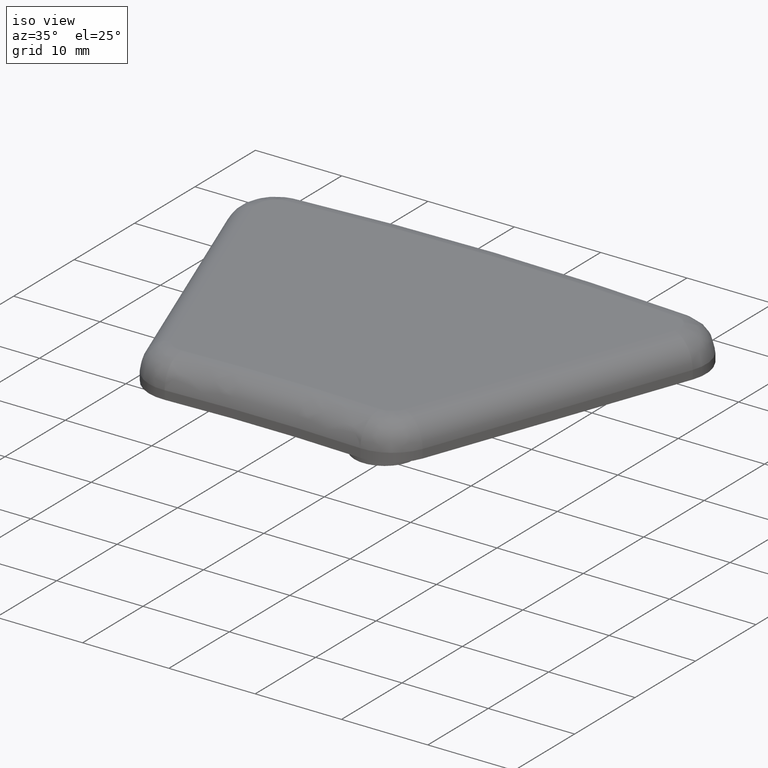
[diagram: clean part render]
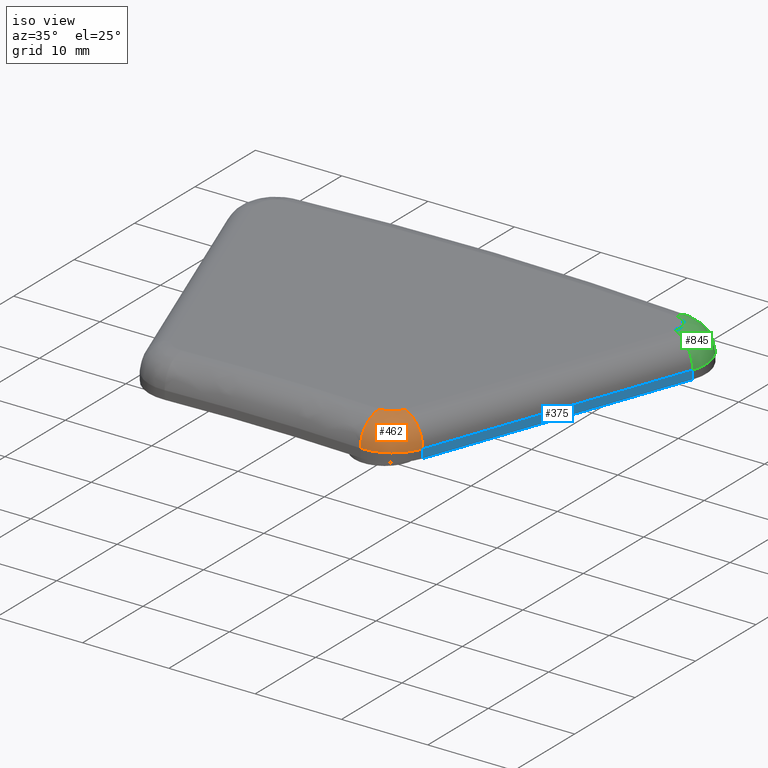
[diagram: same view with three faces highlighted in distinct colors, each labeled with its STEP entity id]
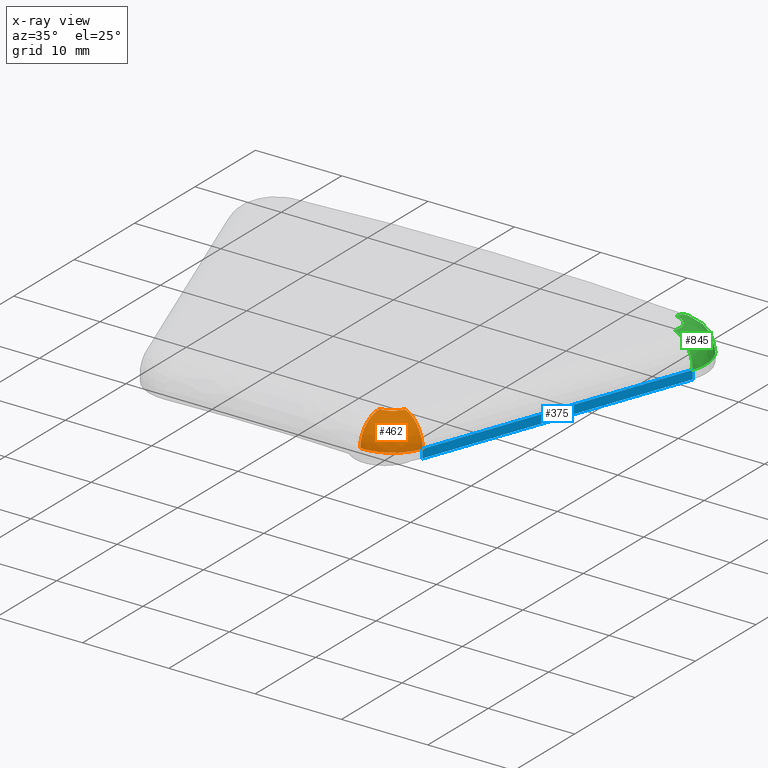
[diagram: x-ray of the same camera — body ghosted, the three highlighted faces saturated]
A machine part, iso view with three faces highlighted in distinct colors.
The next image is the same camera in x-ray (body ghosted, the three faces saturated) — at least one of them is partly hidden behind the body in this view.
Their STEP definitions:

[orange] entity #462 — the highlighted face is a freeform B-spline surface patch.
#105=CARTESIAN_POINT('',(13.477986189388396,-15.947281593540907,4.0));
#106=VERTEX_POINT('',#105);
#159=CARTESIAN_POINT('',(11.494577919335192,-17.249770141834844,4.0));
#160=VERTEX_POINT('',#159);
#168=CARTESIAN_POINT('',(11.602477570224773,-15.252682846462422,4.0));
#169=DIRECTION('',(0.0,0.0,-1.0));
#170=DIRECTION('',(0.937754309581807,-0.347299373539241,0.0));
#171=AXIS2_PLACEMENT_3D('',#168,#169,#170);
#172=CIRCLE('',#171,2.000000000000009);
#173=EDGE_CURVE('',#106,#160,#172,.T.);
#315=CARTESIAN_POINT('',(11.332728443000832,-20.245401084893466,1.0));
#316=VERTEX_POINT('',#315);
#339=CARTESIAN_POINT('',(16.291249118133813,-16.989179714158627,1.0));
#340=VERTEX_POINT('',#339);
#347=CARTESIAN_POINT('',(11.602477570224773,-15.252682846462422,1.0));
#348=DIRECTION('',(0.0,0.0,-1.0));
#349=DIRECTION('',(0.937754309581807,-0.347299373539241,0.0));
#350=AXIS2_PLACEMENT_3D('',#347,#348,#349);
#351=CIRCLE('',#350,5.000000000000009);
#352=EDGE_CURVE('',#340,#316,#351,.T.);
#390=CARTESIAN_POINT('',(13.477986189388398,-15.947281593540907,1.0));
#391=DIRECTION('',(-0.347299373539241,-0.937754309581807,0.0));
#392=DIRECTION('',(0.937754309581807,-0.347299373539241,0.0));
#393=AXIS2_PLACEMENT_3D('',#390,#391,#392);
#394=CIRCLE('',#393,2.999999999999996);
#395=EDGE_CURVE('',#340,#106,#394,.T.);
#400=CARTESIAN_POINT('',(16.291249118133813,-16.989179714158627,1.0));
#401=CARTESIAN_POINT('',(16.291249118133813,-16.989179714158627,1.390180644032257));
#402=CARTESIAN_POINT('',(16.144850358430009,-16.934960611124346,2.179083452029826));
#403=CARTESIAN_POINT('',(15.518763441268515,-16.703087942676394,3.176238734418841));
#404=CARTESIAN_POINT('',(14.583676777885955,-16.356776537781350,3.843883671652662));
#405=CARTESIAN_POINT('',(13.843879769845046,-16.082791086780446,4.0));
#406=CARTESIAN_POINT('',(13.477986189388393,-15.947281593540906,4.0));
#407=CARTESIAN_POINT('',(16.108229000586050,-17.483358273197112,1.0));
#408=CARTESIAN_POINT('',(16.108229000586050,-17.483358273197112,1.390180644032256));
#409=CARTESIAN_POINT('',(15.967544726635300,-17.413709301725820,2.179083452029826));
#410=CARTESIAN_POINT('',(15.365896300452340,-17.115849470671556,3.176238734418841));
#411=CARTESIAN_POINT('',(14.467309532469020,-16.670983513658783,3.843883671652662));
#412=CARTESIAN_POINT('',(13.756389541358800,-16.319026292082349,4.0));
#413=CARTESIAN_POINT('',(13.404778142369283,-16.144953017156297,4.0));
#414=CARTESIAN_POINT('',(15.580730669893455,-18.419984802746466,1.000000000000000));
#415=CARTESIAN_POINT('',(15.580730669893455,-18.419984802746466,1.390180644032256));
#416=CARTESIAN_POINT('',(15.456516616462121,-18.321091292309994,2.179083452029825));
#417=CARTESIAN_POINT('',(14.925304508256403,-17.898164669149232,3.176238734418839));
#418=CARTESIAN_POINT('',(14.131917289653389,-17.266506293823277,3.843883671652662));
#419=CARTESIAN_POINT('',(13.504226281402662,-16.766767612405555,3.999999999999999));
#420=CARTESIAN_POINT('',(13.193778810092248,-16.519603628976046,3.999999999999999));
#421=CARTESIAN_POINT('',(14.393379331441839,-19.502622426625813,1.000000000000000));
#422=CARTESIAN_POINT('',(14.393379331441839,-19.502622426625813,1.390180644032257));
#423=CARTESIAN_POINT('',(14.306238264293974,-19.369925434035174,2.179083452029827));
#424=CARTESIAN_POINT('',(13.933571978055264,-18.802435305186030,3.176238734418841));
#425=CARTESIAN_POINT('',(13.376979491289987,-17.954865364747235,3.843883671652663));
#426=CARTESIAN_POINT('',(12.936629444036086,-17.284307511025048,4.000000000000001));
#427=CARTESIAN_POINT('',(12.718838274711603,-16.952658678527783,4.000000000000001));
#428=CARTESIAN_POINT('',(12.928058967339975,-20.161973362099719,1.000000000000000));
#429=CARTESIAN_POINT('',(12.928058967339975,-20.161973362099719,1.390180644032256));
#430=CARTESIAN_POINT('',(12.886669987211345,-20.008689280081381,2.179083452029826));
#431=CARTESIAN_POINT('',(12.709666445476277,-19.353156688446326,3.176238734418841));
#432=CARTESIAN_POINT('',(12.445304347002272,-18.374091694356320,3.843883671652663));
#433=CARTESIAN_POINT('',(12.236153369719567,-17.599501079743909,3.999999999999999));
#434=CARTESIAN_POINT('',(12.132710129070848,-17.216399052717350,3.999999999999999));
#435=CARTESIAN_POINT('',(11.858941818837684,-20.273831609526919,1.0));
#436=CARTESIAN_POINT('',(11.858941818837684,-20.273831609526919,1.390180644032256));
#437=CARTESIAN_POINT('',(11.850934167468525,-20.117054947731827,2.179083452029826));
#438=CARTESIAN_POINT('',(11.816688756034941,-19.446586037580246,3.176238734418841));
#439=CARTESIAN_POINT('',(11.765541819985286,-18.445213035030093,3.843883671652663));
#440=CARTESIAN_POINT('',(11.725076746808941,-17.652973363319077,4.0));
#441=CARTESIAN_POINT('',(11.705063269669935,-17.261142351688211,4.0));
#442=CARTESIAN_POINT('',(11.332728443000832,-20.245401084893466,1.0));
#443=CARTESIAN_POINT('',(11.332728443000832,-20.245401084893466,1.390180644032256));
#444=CARTESIAN_POINT('',(11.341150891664252,-20.089512116922144,2.179083452029826));
#445=CARTESIAN_POINT('',(11.377170219487107,-19.422839505937443,3.176238734418840));
#446=CARTESIAN_POINT('',(11.430966572913347,-18.427136432951151,3.843883671652662));
#447=CARTESIAN_POINT('',(11.473527741697717,-17.639382545383366,4.0));
#448=CARTESIAN_POINT('',(11.494577919335192,-17.249770141834844,4.0));
#449=B_SPLINE_SURFACE_WITH_KNOTS('',3,3,((#400,#407,#414,#421,#428,#435,#442),(#401,#408,#415,#422,#429,#436,#443),(#402,#409,#416,#423,#430,#437,#444),(#403,#410,#417,#424,#431,#438,#445),(#404,#411,#418,#425,#432,#439,#446),(#405,#412,#419,#426,#433,#440,#447),(#406,#413,#420,#427,#434,#441,#448)),.UNSPECIFIED.,.F.,.F.,.U.,(4,1,1,1,4),(4,1,1,1,4),(0.0,1.170541932096769,2.341083864193539,3.511625796290308,4.682167728387078),(0.0,1.204109657954585,2.408219315909169,3.612328973863754,4.816438631818338),.UNSPECIFIED.);
#450=ORIENTED_EDGE('',*,*,#395,.T.);
#451=ORIENTED_EDGE('',*,*,#173,.T.);
#452=CARTESIAN_POINT('',(11.494577919335194,-17.249770141834833,1.0));
#453=DIRECTION('',(0.998543647686208,-0.053949825444777,0.0));
#454=DIRECTION('',(-0.053949825444777,-0.998543647686208,0.0));
#455=AXIS2_PLACEMENT_3D('',#452,#453,#454);
#456=CIRCLE('',#455,3.000000000000019);
#457=EDGE_CURVE('',#160,#316,#456,.T.);
#458=ORIENTED_EDGE('',*,*,#457,.T.);
#459=ORIENTED_EDGE('',*,*,#352,.F.);
#460=EDGE_LOOP('',(#450,#451,#458,#459));
#461=FACE_OUTER_BOUND('',#460,.T.);
#462=ADVANCED_FACE('',(#461),#449,.T.);

[blue] entity #375 — the highlighted planar face has unit normal (0.9378, -0.3473, 0).
#9=CARTESIAN_POINT('',(27.114485447295095,12.234991950368126,0.0));
#10=VERTEX_POINT('',#9);
#18=CARTESIAN_POINT('',(16.291249118133813,-16.989179714158627,0.0));
#19=VERTEX_POINT('',#18);
#20=CARTESIAN_POINT('',(16.291249118133813,-16.989179714158627,0.0));
#21=DIRECTION('',(0.347299373539241,0.937754309581807,0.0));
#22=VECTOR('',#21,31.163996119153349);
#23=LINE('',#20,#22);
#24=EDGE_CURVE('',#19,#10,#23,.T.);
#191=CARTESIAN_POINT('',(27.114485447295095,12.234991950368126,1.0));
#192=VERTEX_POINT('',#191);
#200=CARTESIAN_POINT('',(27.114485447295095,12.234991950368126,0.0));
#201=DIRECTION('',(0.0,0.0,1.0));
#202=VECTOR('',#201,1.0);
#203=LINE('',#200,#202);
#204=EDGE_CURVE('',#10,#192,#203,.T.);
#339=CARTESIAN_POINT('',(16.291249118133813,-16.989179714158627,1.0));
#340=VERTEX_POINT('',#339);
#341=CARTESIAN_POINT('',(16.291249118133813,-16.989179714158627,0.0));
#342=DIRECTION('',(0.0,0.0,1.0));
#343=VECTOR('',#342,1.0);
#344=LINE('',#341,#343);
#345=EDGE_CURVE('',#19,#340,#344,.T.);
#359=CARTESIAN_POINT('',(14.999999999999950,-20.475723363615913,0.0));
#360=DIRECTION('',(0.937754309581807,-0.347299373539241,0.0));
#361=DIRECTION('',(0.347299373539241,0.937754309581807,0.0));
#362=AXIS2_PLACEMENT_3D('',#359,#360,#361);
#363=PLANE('',#362);
#364=ORIENTED_EDGE('',*,*,#24,.T.);
#365=ORIENTED_EDGE('',*,*,#204,.T.);
#366=CARTESIAN_POINT('',(16.291249118133813,-16.989179714158627,1.0));
#367=DIRECTION('',(0.347299373539241,0.937754309581807,0.0));
#368=VECTOR('',#367,31.163996119153353);
#369=LINE('',#366,#368);
#370=EDGE_CURVE('',#340,#192,#369,.T.);
#371=ORIENTED_EDGE('',*,*,#370,.F.);
#372=ORIENTED_EDGE('',*,*,#345,.F.);
#373=EDGE_LOOP('',(#364,#365,#371,#372));
#374=FACE_OUTER_BOUND('',#373,.T.);
#375=ADVANCED_FACE('',(#374),#363,.T.);

[green] entity #845 — the highlighted face is a freeform B-spline surface patch.
#107=CARTESIAN_POINT('',(24.301222518549679,13.276890070985850,4.0));
#108=VERTEX_POINT('',#107);
#115=CARTESIAN_POINT('',(22.608780951625953,15.963092808415865,4.0));
#116=VERTEX_POINT('',#115);
#117=CARTESIAN_POINT('',(22.425713899386064,13.971488818064330,4.0));
#118=DIRECTION('',(0.0,0.0,-1.0));
#119=DIRECTION('',(0.091533526119945,0.995801995175773,0.0));
#120=AXIS2_PLACEMENT_3D('',#117,#118,#119);
#121=CIRCLE('',#120,1.999999999999990);
#122=EDGE_CURVE('',#116,#108,#121,.T.);
#183=CARTESIAN_POINT('',(22.883381529985748,18.950498793943183,1.0));
#184=VERTEX_POINT('',#183);
#191=CARTESIAN_POINT('',(27.114485447295095,12.234991950368126,1.0));
#192=VERTEX_POINT('',#191);
#193=CARTESIAN_POINT('',(22.425713899386064,13.971488818064330,1.0));
#194=DIRECTION('',(0.0,0.0,-1.0));
#195=DIRECTION('',(0.091533526119945,0.995801995175773,0.0));
#196=AXIS2_PLACEMENT_3D('',#193,#194,#195);
#197=CIRCLE('',#196,4.999999999999990);
#198=EDGE_CURVE('',#184,#192,#197,.T.);
#382=CARTESIAN_POINT('',(24.301222518549679,13.276890070985857,1.0));
#383=DIRECTION('',(0.347299373539241,0.937754309581807,0.0));
#384=DIRECTION('',(0.937754309581807,-0.347299373539241,0.0));
#385=AXIS2_PLACEMENT_3D('',#382,#383,#384);
#386=CIRCLE('',#385,2.999999999999996);
#387=EDGE_CURVE('',#108,#192,#386,.T.);
#750=CARTESIAN_POINT('',(22.608780951625956,15.963092808415869,1.0));
#751=DIRECTION('',(0.995801995175774,-0.091533526119932,0.0));
#752=DIRECTION('',(0.091533526119932,0.995801995175774,0.0));
#753=AXIS2_PLACEMENT_3D('',#750,#751,#752);
#754=CIRCLE('',#753,2.999999999999996);
#755=EDGE_CURVE('',#184,#116,#754,.T.);
#761=CARTESIAN_POINT('',(22.883381529985783,18.950498793943183,1.0));
#762=CARTESIAN_POINT('',(22.883381529985783,18.950498793943183,1.390180644032256));
#763=CARTESIAN_POINT('',(22.869091651967253,18.795037842695393,2.179083452029826));
#764=CARTESIAN_POINT('',(22.807979756666114,18.130195682128942,3.176238734418841));
#765=CARTESIAN_POINT('',(22.716706617579923,17.137226462425911,3.843883671652664));
#766=CARTESIAN_POINT('',(22.644495561797974,16.351635472222156,4.0));
#767=CARTESIAN_POINT('',(22.608780951625953,15.963092808415865,4.0));
#768=CARTESIAN_POINT('',(23.262992006179783,18.915605225134886,1.0));
#769=CARTESIAN_POINT('',(23.262992006179783,18.915605225134886,1.390180644032256));
#770=CARTESIAN_POINT('',(23.236849449412134,18.761233765056140,2.179083452029825));
#771=CARTESIAN_POINT('',(23.125048551600624,18.101050907401074,3.176238734418841));
#772=CARTESIAN_POINT('',(22.958069294197024,17.115040548989761,3.843883671652664));
#773=CARTESIAN_POINT('',(22.825963084292127,16.334955085668781,4.0));
#774=CARTESIAN_POINT('',(22.760625142103553,15.949135380892557,4.0));
#775=CARTESIAN_POINT('',(24.017024878378365,18.757964353798592,1.000000000000000));
#776=CARTESIAN_POINT('',(24.017024878378365,18.757964353798592,1.390180644032257));
#777=CARTESIAN_POINT('',(23.967338952918539,18.608514956525962,2.179083452029826));
#778=CARTESIAN_POINT('',(23.754852809180782,17.969381724800655,3.176238734418841));
#779=CARTESIAN_POINT('',(23.437495979455633,17.014809851904005,3.843883671652666));
#780=CARTESIAN_POINT('',(23.186418039510755,16.259597053793527,4.000000000000002));
#781=CARTESIAN_POINT('',(23.062238290982993,15.886079032358026,4.000000000000002));
#782=CARTESIAN_POINT('',(25.062541689863291,18.271303595077157,1.000000000000000));
#783=CARTESIAN_POINT('',(25.062541689863291,18.271303595077157,1.390180644032256));
#784=CARTESIAN_POINT('',(24.980211315236598,18.137049335964988,2.179083452029828));
#785=CARTESIAN_POINT('',(24.628118370302680,17.562899422581829,3.176238734418841));
#786=CARTESIAN_POINT('',(24.102253018297755,16.705382818943285,3.843883671652663));
#787=CARTESIAN_POINT('',(23.686212848675066,16.026955628652306,3.999999999999999));
#788=CARTESIAN_POINT('',(23.480445015576951,15.691414728869452,3.999999999999999));
#789=CARTESIAN_POINT('',(25.970723161037377,17.559641364709226,1.0));
#790=CARTESIAN_POINT('',(25.970723161037377,17.559641364709226,1.390180644032256));
#791=CARTESIAN_POINT('',(25.860036395060110,17.447607524482752,2.179083452029824));
#792=CARTESIAN_POINT('',(25.386674897862409,16.968485148124742,3.176238734418840));
#793=CARTESIAN_POINT('',(24.679689955587712,16.252896094943814,3.843883671652664));
#794=CARTESIAN_POINT('',(24.120356403408870,15.686755371029461,4.0));
#795=CARTESIAN_POINT('',(23.843717604046589,15.406749836722280,4.0));
#796=CARTESIAN_POINT('',(26.693276720727077,16.660266030467106,1.000000000000000));
#797=CARTESIAN_POINT('',(26.693276720727077,16.660266030467106,1.390180644032257));
#798=CARTESIAN_POINT('',(26.560029472995200,16.576313625238239,2.179083452029828));
#799=CARTESIAN_POINT('',(25.990186130596079,16.217283926596171,3.176238734418840));
#800=CARTESIAN_POINT('',(25.139101568550636,15.681058246493237,3.843883671652663));
#801=CARTESIAN_POINT('',(24.465763109938255,15.256821467904349,4.000000000000000));
#802=CARTESIAN_POINT('',(24.132739027922462,15.046999703025435,4.000000000000000));
#803=CARTESIAN_POINT('',(27.192628504586033,15.620262456232737,1.0));
#804=CARTESIAN_POINT('',(27.192628504586033,15.620262456232737,1.390180644032257));
#805=CARTESIAN_POINT('',(27.043789863444204,15.568782358899387,2.179083452029828));
#806=CARTESIAN_POINT('',(26.407268582966680,15.348623284465852,3.176238734418844));
#807=CARTESIAN_POINT('',(25.456597767112175,15.019806615913176,3.843883671652665));
#808=CARTESIAN_POINT('',(24.704471303606780,14.759662185332481,4.0));
#809=CARTESIAN_POINT('',(24.332479741466038,14.630998273331688,4.0));
#810=CARTESIAN_POINT('',(27.442526430284033,14.493848792675692,1.000000000000000));
#811=CARTESIAN_POINT('',(27.442526430284033,14.493848792675692,1.390180644032256));
#812=CARTESIAN_POINT('',(27.285885159817902,14.477539008413308,2.179083452029824));
#813=CARTESIAN_POINT('',(26.615995262356851,14.407788809920740,3.176238734418838));
#814=CARTESIAN_POINT('',(25.615487039168784,14.303614008322262,3.843883671652664));
#815=CARTESIAN_POINT('',(24.823931540604228,14.221195758170980,3.999999999999999));
#816=CARTESIAN_POINT('',(24.432438911745251,14.180432807908872,4.000000000000000));
#817=CARTESIAN_POINT('',(27.430182153178166,13.340682839310922,1.000000000000000));
#818=CARTESIAN_POINT('',(27.430182153178166,13.340682839310922,1.390180644032257));
#819=CARTESIAN_POINT('',(27.273926311355591,13.360378661971422,2.179083452029828));
#820=CARTESIAN_POINT('',(26.605684732717275,13.444609545589735,3.176238734418845));
#821=CARTESIAN_POINT('',(25.607638341753876,13.570411848365040,3.843883671652665));
#822=CARTESIAN_POINT('',(24.818030530163611,13.669940769953083,4.000000000000002));
#823=CARTESIAN_POINT('',(24.427501200902885,13.719166426562968,4.000000000000001));
#824=CARTESIAN_POINT('',(27.246879719660289,12.592474021842076,1.0));
#825=CARTESIAN_POINT('',(27.246879719660289,12.592474021842076,1.390180644032257));
#826=CARTESIAN_POINT('',(27.096347178417297,12.635531367186655,2.179083452029826));
#827=CARTESIAN_POINT('',(26.452581788123144,12.819669816600316,3.176238734418842));
#828=CARTESIAN_POINT('',(25.491091595131170,13.094688194309445,3.843883671652665));
#829=CARTESIAN_POINT('',(24.730405344443916,13.312269923311430,4.000000000000001));
#830=CARTESIAN_POINT('',(24.354180227495757,13.419882899575423,4.0));
#831=CARTESIAN_POINT('',(27.114485447295085,12.234991950368130,1.0));
#832=CARTESIAN_POINT('',(27.114485447295085,12.234991950368130,1.390180644032256));
#833=CARTESIAN_POINT('',(26.968086687591281,12.289211053402408,2.179083452029826));
#834=CARTESIAN_POINT('',(26.341999770429794,12.521083721850358,3.176238734418841));
#835=CARTESIAN_POINT('',(25.406913107047231,12.867395126745411,3.843883671652664));
#836=CARTESIAN_POINT('',(24.667116099006318,13.141380577746309,4.0));
#837=CARTESIAN_POINT('',(24.301222518549665,13.276890070985850,4.0));
#838=B_SPLINE_SURFACE_WITH_KNOTS('',3,3,((#761,#768,#775,#782,#789,#796,#803,#810,#817,#824,#831),(#762,#769,#776,#783,#790,#797,#804,#811,#818,#825,#832),(#763,#770,#777,#784,#791,#798,#805,#812,#819,#826,#833),(#764,#771,#778,#785,#792,#799,#806,#813,#820,#827,#834),(#765,#772,#779,#786,#793,#800,#807,#814,#821,#828,#835),(#766,#773,#780,#787,#794,#801,#808,#815,#822,#829,#836),(#767,#774,#781,#788,#795,#802,#809,#816,#823,#830,#837)),.UNSPECIFIED.,.F.,.F.,.U.,(4,1,1,1,4),(4,1,1,1,1,1,1,1,4),(0.0,1.170541932096770,2.341083864193540,3.511625796290308,4.682167728387079),(0.0,0.871036605968717,1.742073211937437,2.613109817906155,3.484146423874873,4.355183029843593,5.226219635812311,6.097256241781031,6.968292847749749),.UNSPECIFIED.);
#839=ORIENTED_EDGE('',*,*,#198,.F.);
#840=ORIENTED_EDGE('',*,*,#755,.T.);
#841=ORIENTED_EDGE('',*,*,#122,.T.);
#842=ORIENTED_EDGE('',*,*,#387,.T.);
#843=EDGE_LOOP('',(#839,#840,#841,#842));
#844=FACE_OUTER_BOUND('',#843,.T.);
#845=ADVANCED_FACE('',(#844),#838,.T.);